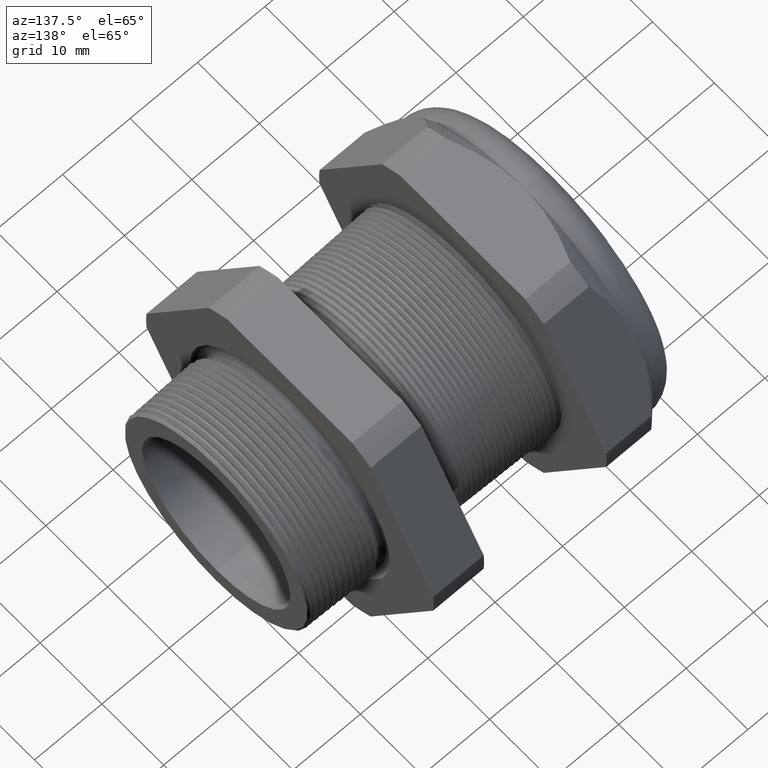
[diagram: clean part render]
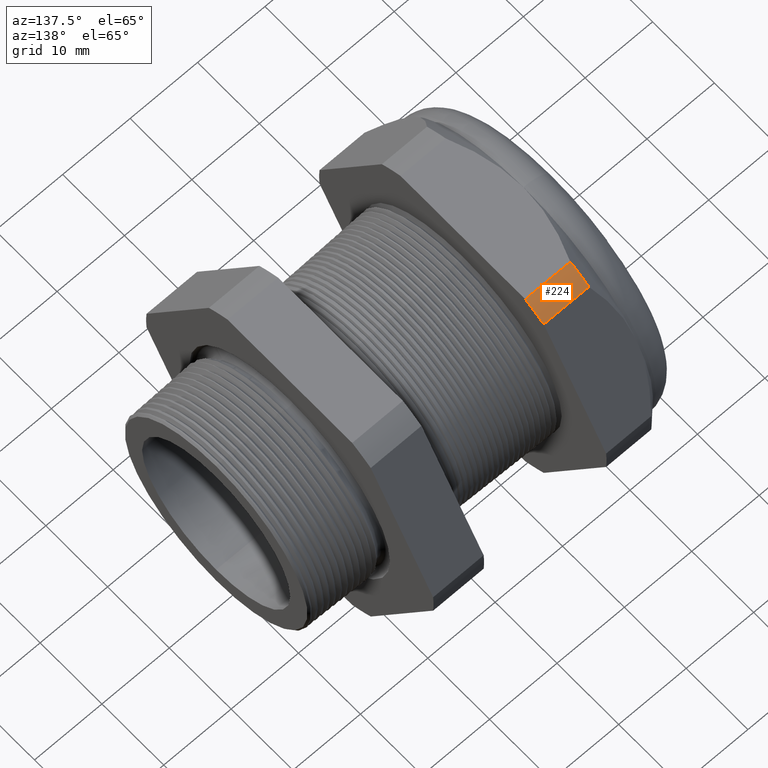
[diagram: same view with one face highlighted and labeled with its STEP entity id]
A machine part, auxiliary view. The second image highlights one B-rep face of the part: STEP entity #224.
In plain terms, the highlighted cylindrical surface (partial cylindrical patch) has radius 23.26 mm, axis along (-1, 0, 0).
Its self-contained STEP definition (entity closure, byte-faithful):
#199 = VERTEX_POINT ( 'NONE', #2151 ) ;
#202 = ORIENTED_EDGE ( 'NONE', *, *, #217, .T. ) ;
#207 = ORIENTED_EDGE ( 'NONE', *, *, #229, .T. ) ;
#210 = ORIENTED_EDGE ( 'NONE', *, *, #212, .F. ) ;
#212 = EDGE_CURVE ( 'NONE', #213, #199, #2139, .T. ) ;
#213 = VERTEX_POINT ( 'NONE', #2135 ) ;
#215 = EDGE_LOOP ( 'NONE', ( #207, #202, #210, #567 ) ) ;
#217 = EDGE_CURVE ( 'NONE', #347, #199, #2190, .T. ) ;
#224 = ADVANCED_FACE ( 'NONE', ( #2175 ), #2174, .T. ) ;
#226 = VERTEX_POINT ( 'NONE', #2173 ) ;
#229 = EDGE_CURVE ( 'NONE', #226, #347, #2223, .T. ) ;
#347 = VERTEX_POINT ( 'NONE', #2435 ) ;
#567 = ORIENTED_EDGE ( 'NONE', *, *, #568, .F. ) ;
#568 = EDGE_CURVE ( 'NONE', #226, #213, #2867, .T. ) ;
#2135 = CARTESIAN_POINT ( 'NONE',  ( -1.320314960629920700, 0.3974582525247153400, 0.8249999999999998400 ) ) ;
#2136 = DIRECTION ( 'NONE',  ( -1.000000000000000000, 0.0000000000000000000, 0.0000000000000000000 ) ) ;
#2137 = VECTOR ( 'NONE', #2136, 39.37007874015748100 ) ;
#2138 = CARTESIAN_POINT ( 'NONE',  ( 0.1200000000000000900, 0.3974582525247153400, 0.8249999999999998400 ) ) ;
#2139 = LINE ( 'NONE', #2138, #2137 ) ;
#2151 = CARTESIAN_POINT ( 'NONE',  ( -1.583895669291338000, 0.3974582525247153400, 0.8249999999999998400 ) ) ;
#2168 = DIRECTION ( 'NONE',  ( 0.0000000000000000000, 0.0000000000000000000, 1.000000000000000000 ) ) ;
#2169 = DIRECTION ( 'NONE',  ( -1.000000000000000000, 0.0000000000000000000, 0.0000000000000000000 ) ) ;
#2170 = CARTESIAN_POINT ( 'NONE',  ( 0.1200000000000000900, 0.0000000000000000000, 0.0000000000000000000 ) ) ;
#2171 = AXIS2_PLACEMENT_3D ( 'NONE', #2170, #2169, #2168 ) ;
#2173 = CARTESIAN_POINT ( 'NONE',  ( -1.320314960629920700, 0.5157418318598044900, 0.7567089436301736000 ) ) ;
#2174 = CYLINDRICAL_SURFACE ( 'NONE', #2171, 0.9157500000000000600 ) ;
#2175 = FACE_OUTER_BOUND ( 'NONE', #215, .T. ) ;
#2187 = DIRECTION ( 'NONE',  ( 0.0000000000000000000, 0.0000000000000000000, -1.000000000000000000 ) ) ;
#2188 = DIRECTION ( 'NONE',  ( 1.000000000000000000, 0.0000000000000000000, 0.0000000000000000000 ) ) ;
#2189 = AXIS2_PLACEMENT_3D ( 'NONE', #2195, #2188, #2187 ) ;
#2190 = CIRCLE ( 'NONE', #2189, 0.9157500000000000600 ) ;
#2195 = CARTESIAN_POINT ( 'NONE',  ( -1.583895669291338000, 0.0000000000000000000, 0.0000000000000000000 ) ) ;
#2220 = DIRECTION ( 'NONE',  ( -1.000000000000000000, 0.0000000000000000000, 0.0000000000000000000 ) ) ;
#2221 = VECTOR ( 'NONE', #2220, 39.37007874015748100 ) ;
#2222 = CARTESIAN_POINT ( 'NONE',  ( 0.1200000000000000900, 0.5157418318598044900, 0.7567089436301736000 ) ) ;
#2223 = LINE ( 'NONE', #2222, #2221 ) ;
#2435 = CARTESIAN_POINT ( 'NONE',  ( -1.583895669291338000, 0.5157418318598044900, 0.7567089436301736000 ) ) ;
#2863 = DIRECTION ( 'NONE',  ( 0.0000000000000000000, 0.0000000000000000000, -1.000000000000000000 ) ) ;
#2864 = DIRECTION ( 'NONE',  ( 1.000000000000000000, 0.0000000000000000000, 0.0000000000000000000 ) ) ;
#2865 = CARTESIAN_POINT ( 'NONE',  ( -1.320314960629920700, 0.0000000000000000000, 0.0000000000000000000 ) ) ;
#2866 = AXIS2_PLACEMENT_3D ( 'NONE', #2865, #2864, #2863 ) ;
#2867 = CIRCLE ( 'NONE', #2866, 0.9157500000000000600 ) ;